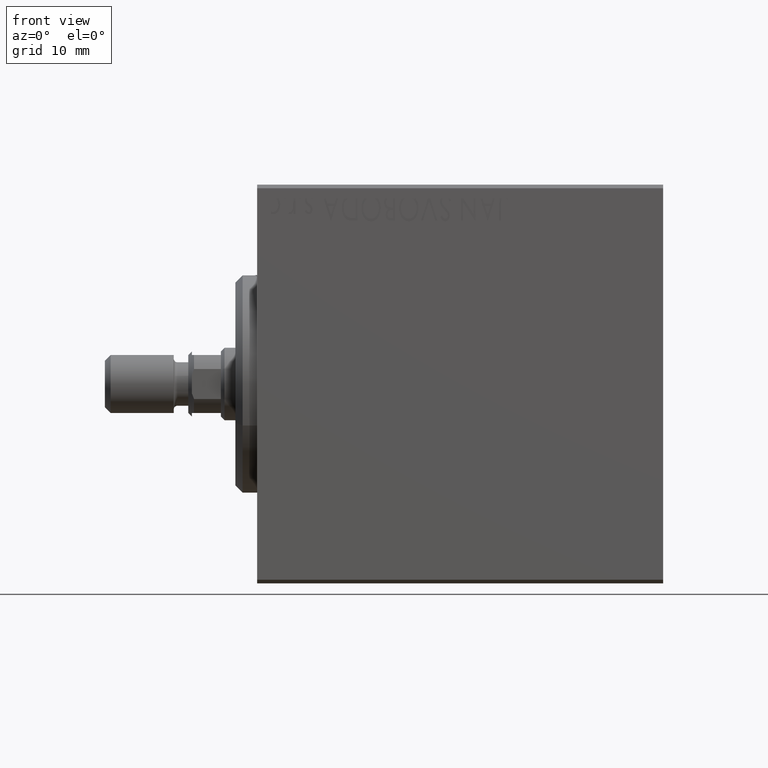
[diagram: clean part render]
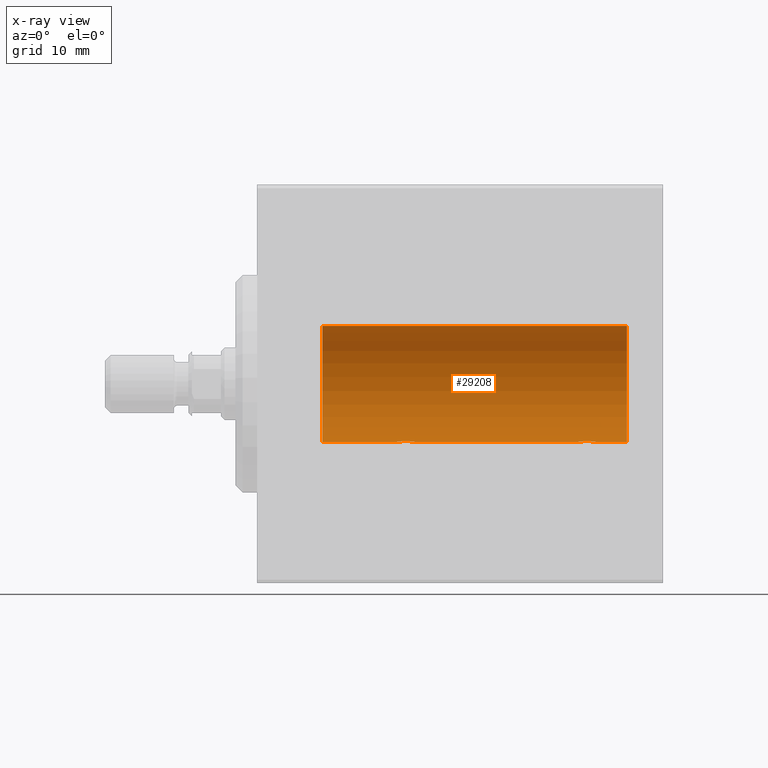
[diagram: x-ray — body ghosted, one internal face saturated and labeled with its STEP entity id]
A machine part, front view, then the same camera in x-ray: the body is ghosted and one INTERNAL B-rep face — a face not visible from any outside direction — is saturated and labeled: STEP entity #29208.
In plain terms, the highlighted cylindrical surface (partial cylindrical patch) has radius 8 mm, axis along (-1, -0, -0).
Its self-contained STEP definition (entity closure, byte-faithful):
#427 = CARTESIAN_POINT ( 'NONE',  ( 19.40826977845302537, 0.6304521543648575754, -7.976560245937306171 ) ) ;
#564 = CARTESIAN_POINT ( 'NONE',  ( 46.74999999999999289, 9.797173987957720246E-16, -7.999999999999998224 ) ) ;
#1154 = AXIS2_PLACEMENT_3D ( 'NONE', #8255, #21976, #26251 ) ;
#1444 = CARTESIAN_POINT ( 'NONE',  ( 45.17150130922779283, 1.217000984963200416, -7.907141142849010151 ) ) ;
#3788 = CARTESIAN_POINT ( 'NONE',  ( 20.58119849493555620, 1.250030652953401988, -7.901735465557267801 ) ) ;
#3936 = CARTESIAN_POINT ( 'NONE',  ( 45.82459038316879685, 1.209888574283866980, -7.907997942808293601 ) ) ;
#4092 = VERTEX_POINT ( 'NONE', #29887 ) ;
#4378 = CARTESIAN_POINT ( 'NONE',  ( 46.26739091610629373, 1.000368629246204399, -7.938072339095200824 ) ) ;
#5931 = LINE ( 'NONE', #12243, #22823 ) ;
#6260 = CARTESIAN_POINT ( 'NONE',  ( 51.00000000000000000, 9.797174393178823685E-16, -7.999999999999998224 ) ) ;
#6291 = ORIENTED_EDGE ( 'NONE', *, *, #30352, .T. ) ;
#6502 = CARTESIAN_POINT ( 'NONE',  ( 21.12982270639374605, 1.092113850918997153, -7.925358570881165576 ) ) ;
#6868 = ORIENTED_EDGE ( 'NONE', *, *, #40204, .T. ) ;
#6954 = CARTESIAN_POINT ( 'NONE',  ( 21.70976650520091411, 0.3250523954932730830, -7.993796610540221614 ) ) ;
#7115 = LINE ( 'NONE', #16179, #28398 ) ;
#7760 = CARTESIAN_POINT ( 'NONE',  ( 46.59204967621045057, 0.6298709050361936956, -7.976604806854522778 ) ) ;
#7950 = EDGE_CURVE ( 'NONE', #4092, #25152, #28188, .T. ) ;
#7972 = CARTESIAN_POINT ( 'NONE',  ( 44.25000000000000711, -6.574401834785964054E-15, -7.999999999999998224 ) ) ;
#8187 = CARTESIAN_POINT ( 'NONE',  ( 44.28266791658455759, 0.3277916934117462988, -7.994719249713585718 ) ) ;
#8255 = CARTESIAN_POINT ( 'NONE',  ( 9.000000000000001776, 0.000000000000000000, 0.000000000000000000 ) ) ;
#8416 = CARTESIAN_POINT ( 'NONE',  ( 45.33619145091235225, 1.249938428426572656, -7.901750054830718462 ) ) ;
#8945 = VERTEX_POINT ( 'NONE', #20354 ) ;
#9143 = CARTESIAN_POINT ( 'NONE',  ( 51.00000000000000000, 0.000000000000000000, 0.000000000000000000 ) ) ;
#9262 = DIRECTION ( 'NONE',  ( -1.000000000000000000, -0.000000000000000000, -0.000000000000000000 ) ) ;
#9481 = CARTESIAN_POINT ( 'NONE',  ( 51.00000000000000000, 9.797174393178823685E-16, -7.999999999999998224 ) ) ;
#11352 = CARTESIAN_POINT ( 'NONE',  ( 44.73146701955094784, 0.9991832710565826670, -7.938201675418733672 ) ) ;
#12243 = CARTESIAN_POINT ( 'NONE',  ( 51.00000000000000000, 9.797174393178823685E-16, -7.999999999999998224 ) ) ;
#12512 = CYLINDRICAL_SURFACE ( 'NONE', #32091, 7.999999999999998224 ) ;
#12649 = LINE ( 'NONE', #9481, #36153 ) ;
#12929 = DIRECTION ( 'NONE',  ( 0.000000000000000000, 0.000000000000000000, 1.000000000000000000 ) ) ;
#13008 = LINE ( 'NONE', #6260, #17557 ) ;
#13174 = DIRECTION ( 'NONE',  ( -1.000000000000000000, -0.000000000000000000, -0.000000000000000000 ) ) ;
#13478 = CARTESIAN_POINT ( 'NONE',  ( 20.17150130922778573, 1.217000984963200860, -7.907141142849008375 ) ) ;
#14146 = CARTESIAN_POINT ( 'NONE',  ( 20.90257413385907270, 1.186236229830388345, -7.911627449023368008 ) ) ;
#15163 = CARTESIAN_POINT ( 'NONE',  ( 46.70976650520091766, 0.3250523954932729165, -7.993796610540221614 ) ) ;
#15679 = EDGE_CURVE ( 'NONE', #37926, #25152, #12649, .T. ) ;
#15950 = CARTESIAN_POINT ( 'NONE',  ( 51.00000000000000000, 0.000000000000000000, 7.999999999999998224 ) ) ;
#16179 = CARTESIAN_POINT ( 'NONE',  ( 51.00000000000000000, 0.000000000000000000, 7.999999999999998224 ) ) ;
#16235 = EDGE_CURVE ( 'NONE', #33593, #37926, #23919, .T. ) ;
#16269 = VERTEX_POINT ( 'NONE', #31383 ) ;
#17488 = EDGE_LOOP ( 'NONE', ( #35867, #28805, #25871, #6868, #18317, #6291, #20971, #33725 ) ) ;
#17508 = CARTESIAN_POINT ( 'NONE',  ( 21.50031982237068107, 0.7674545364220053401, -7.963965305651049320 ) ) ;
#17557 = VECTOR ( 'NONE', #26061, 1000.000000000000000 ) ;
#17658 = CARTESIAN_POINT ( 'NONE',  ( 46.74181525892407052, 0.1645871186493928495, -7.998709545350109806 ) ) ;
#18317 = ORIENTED_EDGE ( 'NONE', *, *, #33248, .F. ) ;
#18985 = EDGE_CURVE ( 'NONE', #4092, #8945, #13008, .T. ) ;
#19660 = CARTESIAN_POINT ( 'NONE',  ( 19.25000000000000711, -6.253246997522681077E-15, -7.999999999999998224 ) ) ;
#19996 = CARTESIAN_POINT ( 'NONE',  ( 19.25000000000000711, -6.253246997522681077E-15, -7.999999999999998224 ) ) ;
#20219 = CARTESIAN_POINT ( 'NONE',  ( 19.73146701955095494, 0.9991832710565806686, -7.938201675418735448 ) ) ;
#20354 = CARTESIAN_POINT ( 'NONE',  ( 21.75000000000000355, 9.797173987965608855E-16, -7.999999999999998224 ) ) ;
#20549 = CIRCLE ( 'NONE', #1154, 7.999999999999998224 ) ;
#20971 = ORIENTED_EDGE ( 'NONE', *, *, #18985, .F. ) ;
#21476 = CARTESIAN_POINT ( 'NONE',  ( 44.50115498801908842, 0.7689725568822843860, -7.963798983873343396 ) ) ;
#21686 = CARTESIAN_POINT ( 'NONE',  ( 45.90257413385905494, 1.186236229830389455, -7.911627449023362679 ) ) ;
#21906 = CARTESIAN_POINT ( 'NONE',  ( 46.12982270639373183, 1.092113850918999818, -7.925358570881163800 ) ) ;
#21976 = DIRECTION ( 'NONE',  ( -1.000000000000000000, 0.000000000000000000, 0.000000000000000000 ) ) ;
#22639 = DIRECTION ( 'NONE',  ( 0.000000000000000000, 0.000000000000000000, 1.000000000000000000 ) ) ;
#22823 = VECTOR ( 'NONE', #29581, 1000.000000000000000 ) ;
#23050 = CARTESIAN_POINT ( 'NONE',  ( 51.00000000000000000, 0.000000000000000000, 0.000000000000000000 ) ) ;
#23197 = VERTEX_POINT ( 'NONE', #19660 ) ;
#23919 = CIRCLE ( 'NONE', #36182, 7.999999999999998224 ) ;
#24039 = CARTESIAN_POINT ( 'NONE',  ( 20.82459038316880395, 1.209888574283866758, -7.907997942808293601 ) ) ;
#24626 = CARTESIAN_POINT ( 'NONE',  ( 44.40826977845300405, 0.6304521543648577975, -7.976560245937304394 ) ) ;
#25152 = VERTEX_POINT ( 'NONE', #38010 ) ;
#25871 = ORIENTED_EDGE ( 'NONE', *, *, #34833, .T. ) ;
#26061 = DIRECTION ( 'NONE',  ( -1.000000000000000000, -0.000000000000000000, -0.000000000000000000 ) ) ;
#26251 = DIRECTION ( 'NONE',  ( 0.000000000000000000, 0.000000000000000000, 1.000000000000000000 ) ) ;
#26975 = CARTESIAN_POINT ( 'NONE',  ( 21.68608944587722576, 0.4029817482954558550, -7.990203133273719338 ) ) ;
#27200 = CARTESIAN_POINT ( 'NONE',  ( 21.75000000000000355, 9.797173987965608855E-16, -7.999999999999998224 ) ) ;
#27421 = CARTESIAN_POINT ( 'NONE',  ( 20.66417091690312091, 1.241868426634441747, -7.903038949453011774 ) ) ;
#27872 = CARTESIAN_POINT ( 'NONE',  ( 21.74181525892405986, 0.1645871186493928773, -7.998709545350109806 ) ) ;
#28188 = B_SPLINE_CURVE_WITH_KNOTS ( 'NONE', 3,
 ( #7972, #39046, #8187, #24626, #21476, #11352, #28895, #1444, #8416, #38619, #42195, #3936, #21686, #21906, #4378, #38387, #7760, #28461, #15163, #17658, #31407, #564 ),
 .UNSPECIFIED., .F., .F.,
 ( 4, 2, 2, 2, 2, 2, 2, 2, 2, 2, 4 ),
 ( 7.505074081152076538E-19, 0.0004892585179630999388, 0.0009785170359261990101, 0.001467775553889298082, 0.001957034071852397587, 0.002201663330833957422, 0.002446292589815517258, 0.002935551107778656445, 0.003424809625741795632, 0.003669438884723368911, 0.003914068143704942625 ),
 .UNSPECIFIED. ) ;
#28398 = VECTOR ( 'NONE', #43656, 1000.000000000000000 ) ;
#28461 = CARTESIAN_POINT ( 'NONE',  ( 46.68608944587722220, 0.4029817482954573538, -7.990203133273721114 ) ) ;
#28805 = ORIENTED_EDGE ( 'NONE', *, *, #16235, .F. ) ;
#28895 = CARTESIAN_POINT ( 'NONE',  ( 44.87074834296262082, 1.092266057037466265, -7.925334523600929160 ) ) ;
#29208 = ADVANCED_FACE ( 'NONE', ( #33683 ), #12512, .F. ) ;
#29581 = DIRECTION ( 'NONE',  ( -1.000000000000000000, -0.000000000000000000, -0.000000000000000000 ) ) ;
#29887 = CARTESIAN_POINT ( 'NONE',  ( 44.25000000000000711, -6.574401834785964054E-15, -7.999999999999998224 ) ) ;
#30352 = EDGE_CURVE ( 'NONE', #23197, #8945, #37712, .T. ) ;
#30903 = CARTESIAN_POINT ( 'NONE',  ( 51.00000000000000000, 9.797174393178823685E-16, -7.999999999999998224 ) ) ;
#31035 = CARTESIAN_POINT ( 'NONE',  ( 19.87074834296262438, 1.092266057037466487, -7.925334523600932712 ) ) ;
#31258 = CARTESIAN_POINT ( 'NONE',  ( 21.75000000000000000, 0.08164616652084619175, -7.999999999999998224 ) ) ;
#31383 = CARTESIAN_POINT ( 'NONE',  ( 9.000000000000001776, 9.797174393178823685E-16, -7.999999999999998224 ) ) ;
#31407 = CARTESIAN_POINT ( 'NONE',  ( 46.75000000000000000, 0.08164616652084634441, -8.000000000000000000 ) ) ;
#32091 = AXIS2_PLACEMENT_3D ( 'NONE', #9143, #13174, #22639 ) ;
#33248 = EDGE_CURVE ( 'NONE', #23197, #16269, #5931, .T. ) ;
#33593 = VERTEX_POINT ( 'NONE', #15950 ) ;
#33683 = FACE_OUTER_BOUND ( 'NONE', #17488, .T. ) ;
#33725 = ORIENTED_EDGE ( 'NONE', *, *, #7950, .T. ) ;
#33974 = CARTESIAN_POINT ( 'NONE',  ( 21.26739091610630084, 1.000368629246204399, -7.938072339095202601 ) ) ;
#34200 = CARTESIAN_POINT ( 'NONE',  ( 19.50115498801909197, 0.7689725568822818325, -7.963798983873345172 ) ) ;
#34639 = CARTESIAN_POINT ( 'NONE',  ( 20.33619145091235936, 1.249938428426572656, -7.901750054830717573 ) ) ;
#34833 = EDGE_CURVE ( 'NONE', #33593, #36024, #7115, .T. ) ;
#35867 = ORIENTED_EDGE ( 'NONE', *, *, #15679, .F. ) ;
#36024 = VERTEX_POINT ( 'NONE', #42451 ) ;
#36153 = VECTOR ( 'NONE', #9262, 1000.000000000000000 ) ;
#36182 = AXIS2_PLACEMENT_3D ( 'NONE', #23050, #43771, #12929 ) ;
#37712 = B_SPLINE_CURVE_WITH_KNOTS ( 'NONE', 3,
 ( #19996, #41395, #40726, #427, #34200, #20219, #31035, #13478, #34639, #3788, #27421, #24039, #14146, #6502, #33974, #17508, #44090, #26975, #6954, #27872, #31258, #27200 ),
 .UNSPECIFIED., .F., .F.,
 ( 4, 2, 2, 2, 2, 2, 2, 2, 2, 2, 4 ),
 ( 4.384776375612755932E-19, 0.0004892585179631271522, 0.0009785170359262538708, 0.001467775553889380698, 0.001957034071852507308, 0.002201663330834065842, 0.002446292589815623510, 0.002935551107778730170, 0.003424809625741835964, 0.003669438884723391463, 0.003914068143704946962 ),
 .UNSPECIFIED. ) ;
#37926 = VERTEX_POINT ( 'NONE', #30903 ) ;
#38010 = CARTESIAN_POINT ( 'NONE',  ( 46.74999999999999289, 9.797173987957720246E-16, -7.999999999999998224 ) ) ;
#38387 = CARTESIAN_POINT ( 'NONE',  ( 46.50031982237067751, 0.7674545364220052290, -7.963965305651049320 ) ) ;
#38619 = CARTESIAN_POINT ( 'NONE',  ( 45.58119849493557751, 1.250030652953401322, -7.901735465557271354 ) ) ;
#39046 = CARTESIAN_POINT ( 'NONE',  ( 44.25000000000001421, 0.1654536524217962712, -8.000000000000000000 ) ) ;
#40204 = EDGE_CURVE ( 'NONE', #36024, #16269, #20549, .T. ) ;
#40726 = CARTESIAN_POINT ( 'NONE',  ( 19.28266791658456825, 0.3277916934117463543, -7.994719249713585718 ) ) ;
#41395 = CARTESIAN_POINT ( 'NONE',  ( 19.25000000000000711, 0.1654536524217966875, -8.000000000000000000 ) ) ;
#42195 = CARTESIAN_POINT ( 'NONE',  ( 45.66417091690310315, 1.241868426634441969, -7.903038949453011774 ) ) ;
#42451 = CARTESIAN_POINT ( 'NONE',  ( 9.000000000000001776, 0.000000000000000000, 7.999999999999998224 ) ) ;
#43656 = DIRECTION ( 'NONE',  ( -1.000000000000000000, -0.000000000000000000, -0.000000000000000000 ) ) ;
#43771 = DIRECTION ( 'NONE',  ( -1.000000000000000000, 0.000000000000000000, 0.000000000000000000 ) ) ;
#44090 = CARTESIAN_POINT ( 'NONE',  ( 21.59204967621043991, 0.6298709050361920303, -7.976604806854521001 ) ) ;